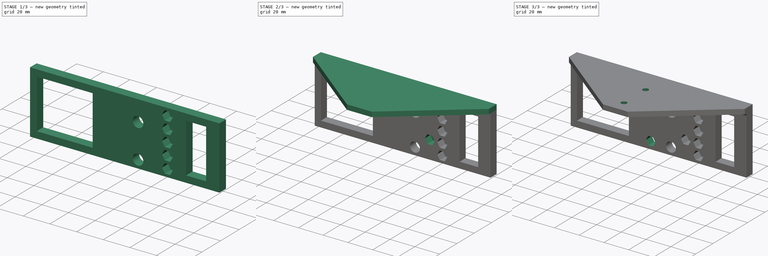
[diagram: build sequence overview — one tinted view per stage of 3, left to right]
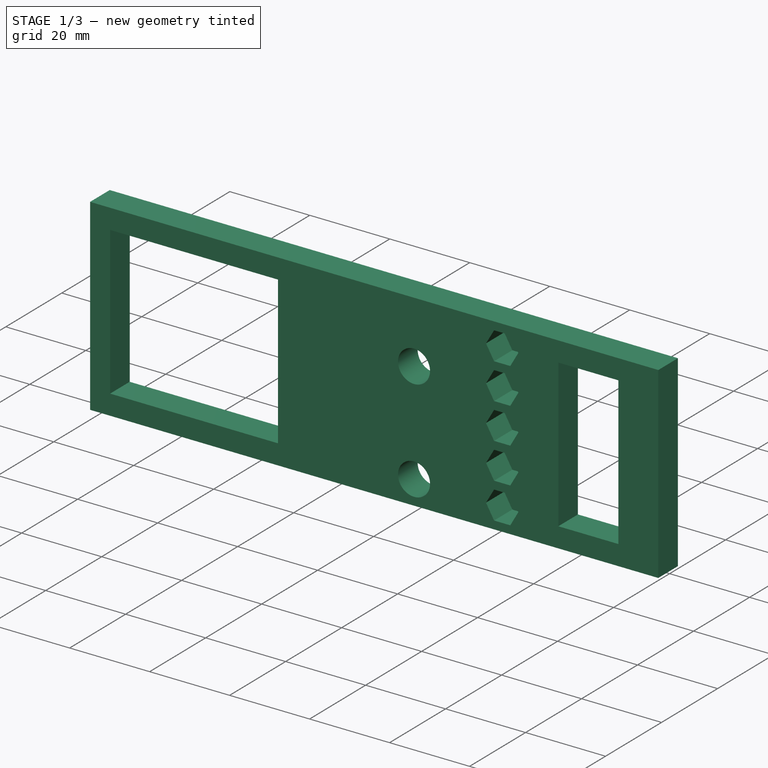
[diagram: stage 1 of 3 — iso view after this stage's code; geometry added in this stage tinted green]
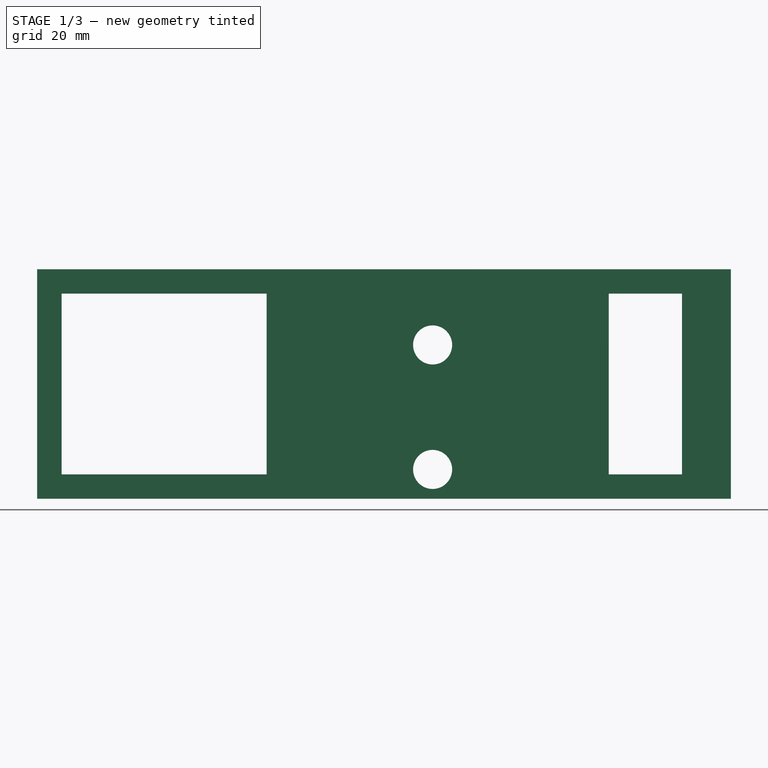
[diagram: stage 1 of 3 — front view after this stage's code; geometry added in this stage tinted green]
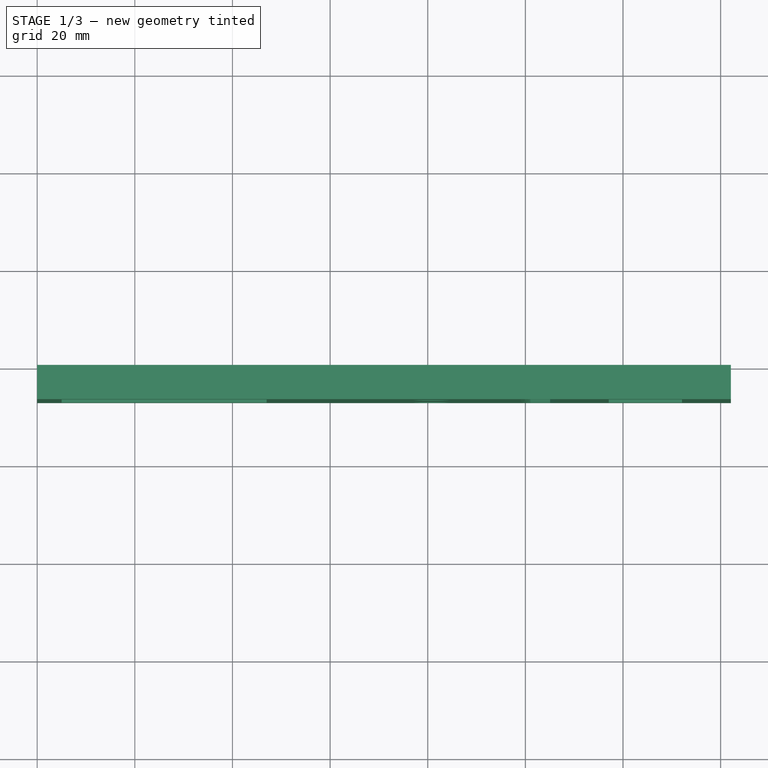
[diagram: stage 1 of 3 — top view after this stage's code; geometry added in this stage tinted green]
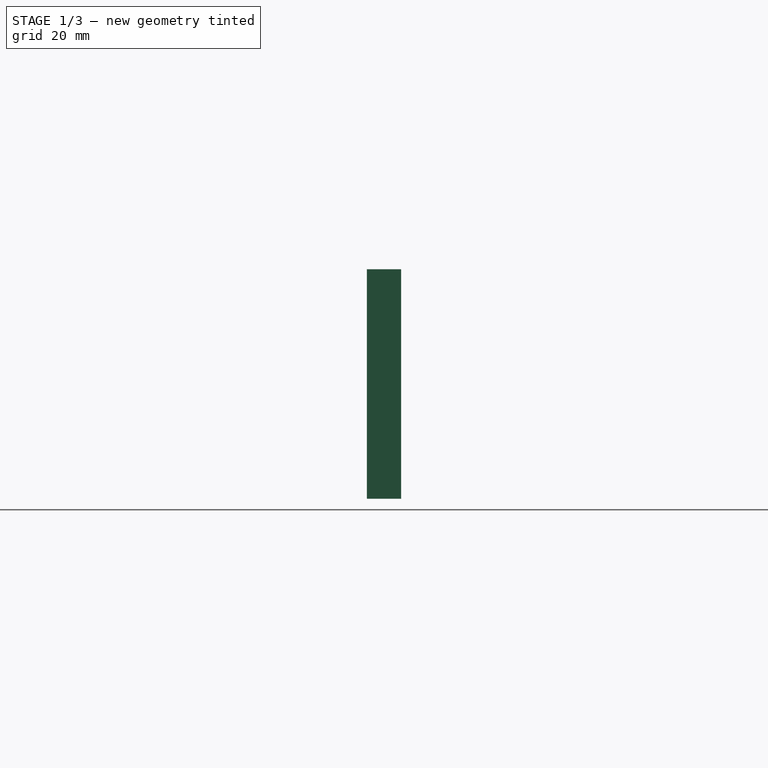
[diagram: stage 1 of 3 — right view after this stage's code; geometry added in this stage tinted green]
FCSTD DOCUMENT  (FreeCAD 0.18R4 (GitTag))
Label: soporte_mabrega
License: All rights reserved
LicenseURL: http://en.wikipedia.org/wiki/All_rights_reserved
objects: Sketcher::SketchObject×6, PartDesign::Pocket×3, PartDesign::Pad×2, PartDesign::LinearPattern×1, PartDesign::Chamfer×1, PartDesign::Hole×1, PartDesign::Body×1
note: 21 computed .brp shape members not serialized (recipe doc carries the construction recipe); baked Part::Feature solids carry a one-line shape summary decoded from their .brp

FEATURE [Sketcher::SketchObject] Sketch
  MapMode = 5
  Placement = pos=(0,0,0) rot=(1,0,0;1.5708rad)
  Support = -> [XZ_Plane]
  sketch-geometry (40):
    g0: LineSegment [constr] StartX=-16.5 StartY=23.5 StartZ=0 EndX=148.5 EndY=23.5 EndZ=0
    g1: LineSegment StartX=0 StartY=47 StartZ=0 EndX=142.083 EndY=47 EndZ=0
    g2: LineSegment StartX=142.083 StartY=47 StartZ=0 EndX=142.083 EndY=0 EndZ=0
    g3: LineSegment StartX=142.083 StartY=0 StartZ=0 EndX=0 EndY=0 EndZ=0
    g4: LineSegment StartX=0 StartY=0 StartZ=0 EndX=0 EndY=47 EndZ=0
    g5: LineSegment StartX=5 StartY=42 StartZ=0 EndX=47 EndY=42 EndZ=0
    g6: LineSegment StartX=47 StartY=42 StartZ=0 EndX=47 EndY=5 EndZ=0
    g7: LineSegment StartX=47 StartY=5 StartZ=0 EndX=5 EndY=5 EndZ=0
    g8: LineSegment StartX=5 StartY=5 StartZ=0 EndX=5 EndY=42 EndZ=0
    g9: Circle [constr] CenterX=81 CenterY=31.5 CenterZ=0 NormalX=0 NormalY=0 NormalZ=1 AngleXU=0 Radius=13
    g10: Circle [constr] CenterX=81 CenterY=6 CenterZ=0 NormalX=0 NormalY=0 NormalZ=1 AngleXU=0 Radius=9
    g11: LineSegment [constr] StartX=65 StartY=60 StartZ=0 EndX=65 EndY=-13 EndZ=0
    g12: LineSegment [constr] StartX=81 StartY=60 StartZ=0 EndX=81 EndY=-13 EndZ=0
    g13: Circle CenterX=81 CenterY=31.5 CenterZ=0 NormalX=0 NormalY=0 NormalZ=1 AngleXU=0 Radius=4
    g14: Circle CenterX=81 CenterY=6 CenterZ=0 NormalX=0 NormalY=0 NormalZ=1 AngleXU=0 Radius=4
    g15: LineSegment [constr] StartX=105.062 StartY=38 StartZ=0 EndX=107.083 EndY=41.5 EndZ=0
    g16: LineSegment [constr] StartX=107.083 StartY=41.5 StartZ=0 EndX=105.062 EndY=45 EndZ=0
    g17: LineSegment [constr] StartX=105.062 StartY=45 StartZ=0 EndX=101.021 EndY=45 EndZ=0
    g18: LineSegment [constr] StartX=101.021 StartY=45 StartZ=0 EndX=99 EndY=41.5 EndZ=0
    g19: LineSegment [constr] StartX=99 StartY=41.5 StartZ=0 EndX=101.021 EndY=38 EndZ=0
    g20: LineSegment [constr] StartX=101.021 StartY=38 StartZ=0 EndX=105.062 EndY=38 EndZ=0
    g21: Circle [constr] CenterX=103.041 CenterY=41.5 CenterZ=0 NormalX=0 NormalY=0 NormalZ=1 AngleXU=0 Radius=4.04145
    g22: LineSegment [constr] StartX=105.062 StartY=29 StartZ=0 EndX=107.083 EndY=32.5 EndZ=0
    g23: LineSegment [constr] StartX=107.083 StartY=32.5 StartZ=0 EndX=105.062 EndY=36 EndZ=0
    g24: LineSegment [constr] StartX=105.062 StartY=36 StartZ=0 EndX=101.021 EndY=36 EndZ=0
    g25: LineSegment [constr] StartX=101.021 StartY=36 StartZ=0 EndX=99 EndY=32.5 EndZ=0
    g26: LineSegment [constr] StartX=99 StartY=32.5 StartZ=0 EndX=101.021 EndY=29 EndZ=0
    g27: LineSegment [constr] StartX=101.021 StartY=29 StartZ=0 EndX=105.062 EndY=29 EndZ=0
    g28: Circle [constr] CenterX=103.041 CenterY=32.5 CenterZ=0 NormalX=0 NormalY=0 NormalZ=1 AngleXU=0 Radius=4.04145
    g29: LineSegment [constr] StartX=105.062 StartY=20 StartZ=0 EndX=107.083 EndY=23.5 EndZ=0
    g30: LineSegment [constr] StartX=107.083 StartY=23.5 StartZ=0 EndX=105.062 EndY=27 EndZ=0
    g31: LineSegment [constr] StartX=105.062 StartY=27 StartZ=0 EndX=101.021 EndY=27 EndZ=0
    g32: LineSegment [constr] StartX=101.021 StartY=27 StartZ=0 EndX=99 EndY=23.5 EndZ=0
    g33: LineSegment [constr] StartX=99 StartY=23.5 StartZ=0 EndX=101.021 EndY=20 EndZ=0
    g34: LineSegment [constr] StartX=101.021 StartY=20 StartZ=0 EndX=105.062 EndY=20 EndZ=0
    g35: Circle [constr] CenterX=103.041 CenterY=23.5 CenterZ=0 NormalX=0 NormalY=0 NormalZ=1 AngleXU=0 Radius=4.04145
    g36: LineSegment StartX=117.083 StartY=42 StartZ=0 EndX=132.083 EndY=42 EndZ=0
    g37: LineSegment StartX=132.083 StartY=42 StartZ=0 EndX=132.083 EndY=5 EndZ=0
    g38: LineSegment StartX=132.083 StartY=5 StartZ=0 EndX=117.083 EndY=5 EndZ=0
    g39: LineSegment StartX=117.083 StartY=5 StartZ=0 EndX=117.083 EndY=42 EndZ=0
  constraints (105):
    c: Horizontal(g0)
    c: DistanceY(g-1,g0) = 23.5
    c: DistanceX(g0,g-1) = 16.5
    c: Coincident(g1,g2)
    c: Coincident(g2,g3)
    c: Coincident(g3,g4)
    c: Coincident(g4,g1)
    c: Horizontal(g1)
    c: Horizontal(g3)
    c: Vertical(g2)
    c: PointOnObject(g1,g-2)
    c: Symmetric(g3,g1,g0)
    c: Coincident(g5,g6)
    c: Coincident(g6,g7)
    c: Coincident(g7,g8)
    c: Coincident(g8,g5)
    c: Horizontal(g5)
    c: Horizontal(g7)
    c: Vertical(g6)
    c: Symmetric(g5,g7,g0)
    c: DistanceY(g4,g4) = 47
    c: DistanceY(g8,g8) = 37
    c: DistanceX(g3,g7) = 5
    c: DistanceX(g7,g7) = 42
    c: Diameter(g9) = 26
    c: Diameter(g10) = 18
    c: Symmetric(g11,g11,g0)
    c: DistanceX(g5,g11) = 60
    c: DistanceX(g5,g9) = 76
    c: Vertical(g12)
    c: PointOnObject(g9,g12)
    c: PointOnObject(g10,g12)
    c: Equal(g11,g12)
    c: Horizontal(g12,g11)
    c: DistanceY(g11,g11) = 73
    c: Coincident(g13,g9)
    c: Coincident(g14,g10)
    c: DistanceY(g14,g13) = 25.5
    c: Diameter(g14) = 8
    c: Equal(g14,g13)
    c: Coincident(g15,g16)
    c: Coincident(g16,g17)
    c: Coincident(g17,g18)
    c: Coincident(g18,g19)
    c: Coincident(g19,g20)
    c: Coincident(g20,g15)
    c: Equal(g15, g16-g20) x5
    c: PointOnObject(g15,g21)
    c: PointOnObject(g16,g21)
    c: PointOnObject(g17,g21)
    c: PointOnObject(g18,g21)
    c: PointOnObject(g19,g21)
    c: PointOnObject(g20,g21)
    c: Horizontal(g20)
    c: Distance(g18,g15) = 7
    c: DistanceX(g13,g18) = 18
    c: Coincident(g22,g23)
    c: Coincident(g23,g24)
    c: Coincident(g24,g25)
    c: Coincident(g25,g26)
    c: Coincident(g26,g27)
    c: Coincident(g27,g22)
    c: Equal(g22, g23-g27) x5
    c: PointOnObject(g22,g28)
    c: PointOnObject(g23,g28)
    c: PointOnObject(g24,g28)
    c: PointOnObject(g25,g28)
    c: PointOnObject(g26,g28)
    c: PointOnObject(g27,g28)
    c: Horizontal(g27)
    c: Distance(g25,g22) = 7
    c: DistanceY(g17,g1) = 2
    c: DistanceY(g24,g19) = 2
    c: Coincident(g29,g30)
    c: Coincident(g30,g31)
    c: Coincident(g31,g32)
    c: Coincident(g32,g33)
    c: Coincident(g33,g34)
    c: Coincident(g34,g29)
    c: Equal(g29, g30-g34) x5
    c: PointOnObject(g29,g35)
    c: PointOnObject(g30,g35)
    c: PointOnObject(g31,g35)
    c: PointOnObject(g32,g35)
    c: PointOnObject(g33,g35)
    c: PointOnObject(g34,g35)
    c: Horizontal(g34)
    c: Distance(g32,g29) = 7
    c: DistanceY(g31,g26) = 2
    c: Vertical(g18,g25)
    c: Vertical(g25,g32)
    c: Coincident(g36,g37)
    c: Coincident(g37,g38)
    c: Coincident(g38,g39)
    c: Coincident(g39,g36)
    c: Horizontal(g36)
    c: Horizontal(g38)
    c: Vertical(g37)
    c: DistanceX(g15,g36) = 10
    c: Symmetric(g38,g36,g0)
    c: DistanceY(g39,g39) = 37
    c: DistanceX(g38,g38) = 15
    c: DistanceX(g37,g2) = 10
    c: DistanceX(g0,g0) = 165
    c: DistanceY(g2,g14) = 6
FEATURE [PartDesign::Pad] Pad
  Length = 7
  Length2 = 100
  Placement = pos=(0,0,0) rot=(1,0,0;1.5708rad)
  Profile = -> Sketch
  Type = 0
FEATURE [Sketcher::SketchObject] Sketch001
  ExternalGeometry = -> [Pad]
  MapMode = 5
  Placement = pos=(0,-7,0) rot=(1,0,0;1.5708rad)
  Support = -> [Pad]
  sketch-geometry (8):
    g0: LineSegment [constr] StartX=103.041 StartY=47 StartZ=0 EndX=103.041 EndY=0 EndZ=0
    g1: LineSegment StartX=105.062 StartY=45 StartZ=0 EndX=101.021 EndY=45 EndZ=0
    g2: LineSegment StartX=101.021 StartY=45 StartZ=0 EndX=99 EndY=41.5 EndZ=0
    g3: LineSegment StartX=99 StartY=41.5 StartZ=0 EndX=101.021 EndY=38 EndZ=0
    g4: LineSegment StartX=101.021 StartY=38 StartZ=0 EndX=105.062 EndY=38 EndZ=0
    g5: LineSegment StartX=105.062 StartY=38 StartZ=0 EndX=107.083 EndY=41.5 EndZ=0
    g6: LineSegment StartX=107.083 StartY=41.5 StartZ=0 EndX=105.062 EndY=45 EndZ=0
    g7: Circle [constr] CenterX=103.041 CenterY=41.5 CenterZ=0 NormalX=0 NormalY=0 NormalZ=1 AngleXU=0 Radius=4.04145
  constraints (21):
    c: Vertical(g0)
    c: PointOnObject(g0,g-3)
    c: PointOnObject(g0,g-1)
    c: Coincident(g1,g2)
    c: Coincident(g2,g3)
    c: Coincident(g3,g4)
    c: Coincident(g4,g5)
    c: Coincident(g5,g6)
    c: Coincident(g6,g1)
    c: Equal(g1, g2-g6) x5
    c: PointOnObject(g1,g7)
    c: PointOnObject(g2,g7)
    c: PointOnObject(g3,g7)
    c: PointOnObject(g4,g7)
    c: PointOnObject(g5,g7)
    c: PointOnObject(g6,g7)
    c: PointOnObject(g7,g0)
    c: Horizontal(g1)
    c: Distance(g2,g4) = 7
    c: DistanceX(g5,g-3) = 35
    c: DistanceY(g1,g-3) = 2
FEATURE [PartDesign::Pocket] Pocket
  BaseFeature = -> Pad
  Length = 6.5
  Length2 = 100
  Placement = pos=(0,0,0) rot=(1,0,0;1.5708rad)
  Profile = -> Sketch001
  Type = 0
FEATURE [PartDesign::LinearPattern] LinearPattern
  BaseFeature = -> Pocket
  Direction = -> Z_Axis
  Length = 36
  Occurrences = 5
  Originals = -> [Pocket]
  Placement = pos=(0,0,0) rot=(1,0,0;1.5708rad)
  Reversed = true
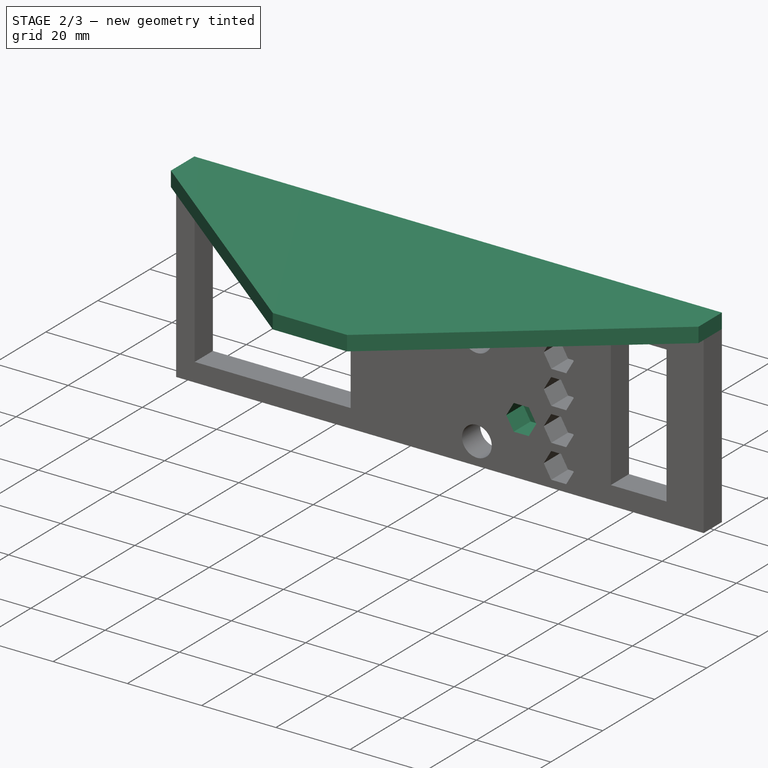
[diagram: stage 2 of 3 — iso view after this stage's code; geometry added in this stage tinted green]
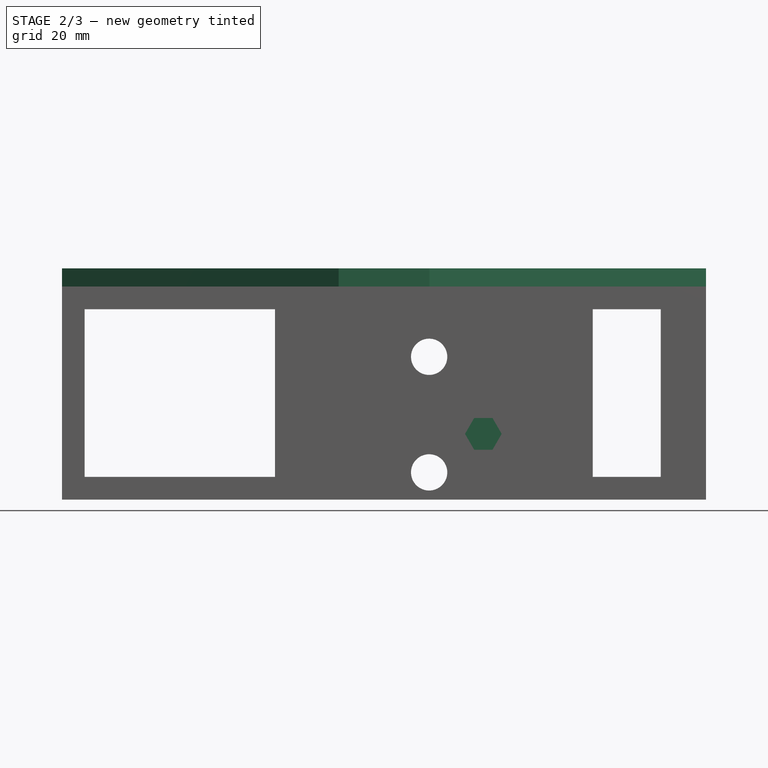
[diagram: stage 2 of 3 — front view after this stage's code; geometry added in this stage tinted green]
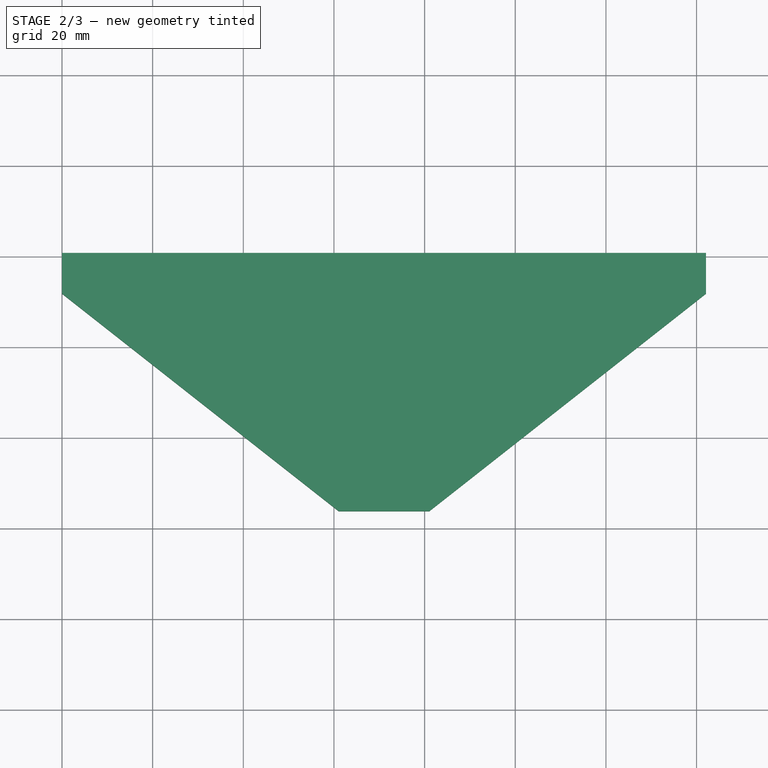
[diagram: stage 2 of 3 — top view after this stage's code; geometry added in this stage tinted green]
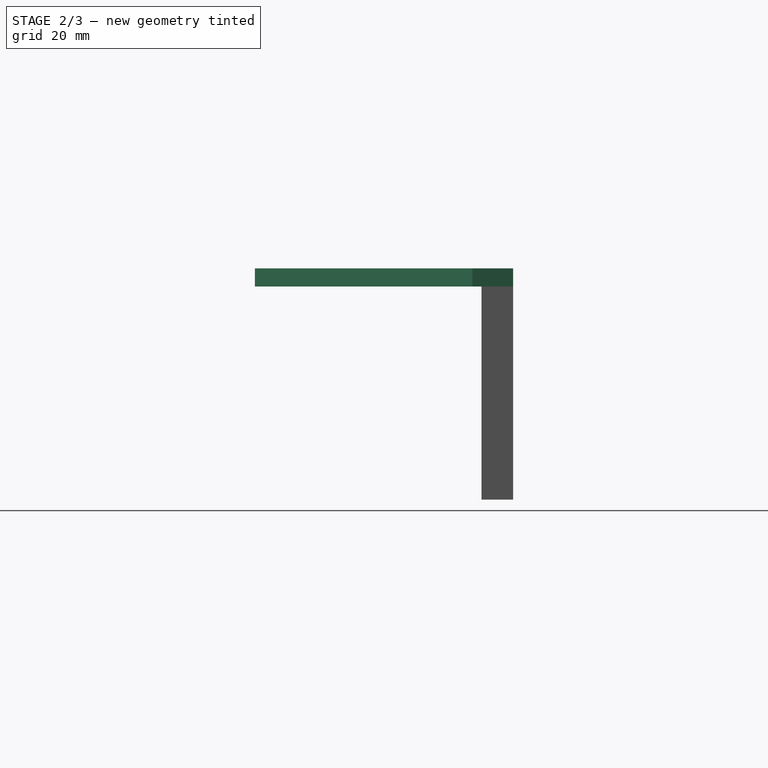
[diagram: stage 2 of 3 — right view after this stage's code; geometry added in this stage tinted green]
FEATURE [Sketcher::SketchObject] Sketch002
  ExternalGeometry = -> [LinearPattern]
  MapMode = 5
  Placement = pos=(0,-7,0) rot=(1,0,0;1.5708rad)
  Support = -> [LinearPattern]
  sketch-geometry (9):
    g0: LineSegment StartX=94.9793 StartY=11 StartZ=0 EndX=97 EndY=14.5 EndZ=0
    g1: LineSegment StartX=97 StartY=14.5 StartZ=0 EndX=94.9793 EndY=18 EndZ=0
    g2: LineSegment StartX=94.9793 StartY=18 StartZ=0 EndX=90.9378 EndY=18 EndZ=0
    g3: LineSegment StartX=90.9378 StartY=18 StartZ=0 EndX=88.9171 EndY=14.5 EndZ=0
    g4: LineSegment StartX=88.9171 StartY=14.5 StartZ=0 EndX=90.9378 EndY=11 EndZ=0
    g5: LineSegment StartX=90.9378 StartY=11 StartZ=0 EndX=94.9793 EndY=11 EndZ=0
    g6: Circle [constr] CenterX=92.9585 CenterY=14.5 CenterZ=0 NormalX=0 NormalY=0 NormalZ=1 AngleXU=0 Radius=4.04145
    g7: Circle [constr] CenterX=81 CenterY=31.5 CenterZ=0 NormalX=0 NormalY=0 NormalZ=1 AngleXU=0 Radius=13
    g8: Circle [constr] CenterX=81 CenterY=6 CenterZ=0 NormalX=0 NormalY=0 NormalZ=1 AngleXU=0 Radius=9
  constraints (19):
    c: Coincident(g0,g1)
    c: Coincident(g1,g2)
    c: Coincident(g2,g3)
    c: Coincident(g3,g4)
    c: Coincident(g4,g5)
    c: Coincident(g5,g0)
    c: Equal(g0, g1-g5) x5
    c: PointOnObject(g0,g6)
    c: PointOnObject(g1,g6)
    c: PointOnObject(g2,g6)
    c: PointOnObject(g3,g6)
    c: PointOnObject(g4,g6)
    c: PointOnObject(g5,g6)
    c: Horizontal(g2)
    c: Distance(g3,g0) = 7
    c: Diameter(g7) = 26
    c: Diameter(g8) = 18
    c: Horizontal(g1,g-5)
    c: DistanceX(g0,g-9) = 2
FEATURE [PartDesign::Pocket] Pocket001
  BaseFeature = -> LinearPattern
  Length = 6.5
  Length2 = 100
  Placement = pos=(0,0,0) rot=(1,0,0;1.5708rad)
  Profile = -> Sketch002
  Type = 0
FEATURE [Sketcher::SketchObject] Sketch003
  ExternalGeometry = -> [Pocket001]
  MapMode = 5
  Placement = pos=(0,1.04e-14,47) rot=(0,0,1;3.14159rad)
  Support = -> [Pocket001]
  sketch-geometry (7):
    g0: LineSegment StartX=-142.083 StartY=9 StartZ=0 EndX=-81.0415 EndY=57 EndZ=0
    g1: LineSegment StartX=-81.0415 StartY=57 StartZ=0 EndX=-61.0415 EndY=57 EndZ=0
    g2: LineSegment StartX=-61.0415 StartY=57 StartZ=0 EndX=0 EndY=9 EndZ=0
    g3: LineSegment [constr] StartX=-71.0415 StartY=57 StartZ=0 EndX=-71.0415 EndY=0 EndZ=0
    g4: LineSegment StartX=-142.083 StartY=9 StartZ=0 EndX=-142.083 EndY=0 EndZ=0
    g5: LineSegment StartX=-142.083 StartY=0 StartZ=0 EndX=0 EndY=0 EndZ=0
    g6: LineSegment StartX=0 StartY=0 StartZ=0 EndX=0 EndY=9 EndZ=0
  constraints (19):
    c: Coincident(g0,g1)
    c: Coincident(g1,g2)
    c: Symmetric(g0,g2,g3)
    c: PointOnObject(g3,g1)
    c: PointOnObject(g3,g-1)
    c: Symmetric(g0,g1,g3)
    c: DistanceX(g1,g1) = 20
    c: Vertical(g4)
    c: Coincident(g4,g5)
    c: Horizontal(g5)
    c: Coincident(g5,g6)
    c: Coincident(g5,g-1)
    c: Coincident(g0,g4)
    c: Coincident(g6,g2)
    c: PointOnObject(g2,g-2)
    c: Horizontal(g2,g0)
    c: Vertical(g0,g-3)
    c: DistanceY(g-3,g1) = 50
    c: DistanceY(g-3,g2) = 2
FEATURE [PartDesign::Pad] Pad001
  BaseFeature = -> Pocket001
  Length = 4
  Length2 = 100
  Placement = pos=(0,0,0) rot=(1,0,0;1.5708rad)
  Profile = -> Sketch003
  Type = 0
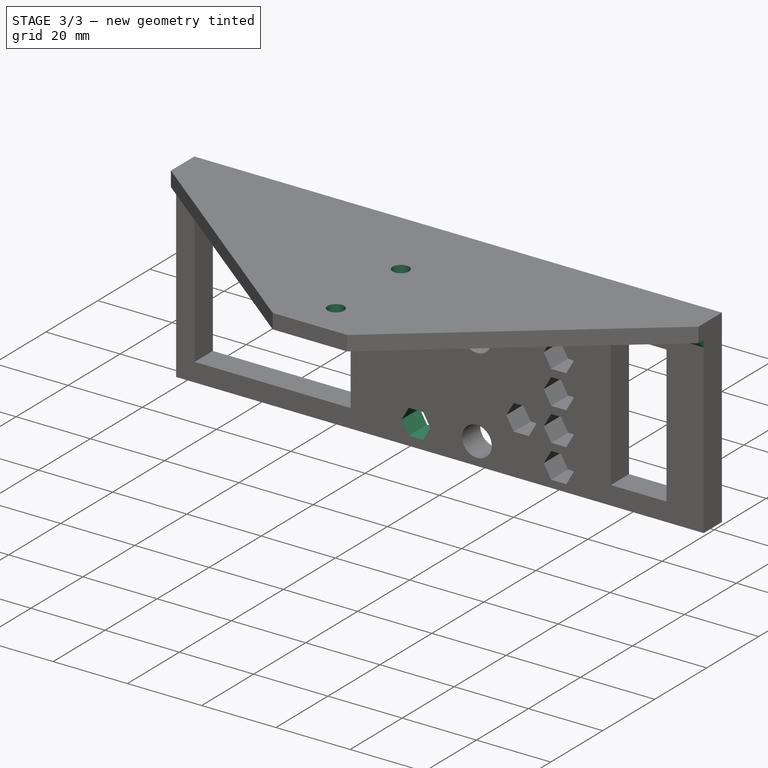
[diagram: stage 3 of 3 — iso view after this stage's code; geometry added in this stage tinted green]
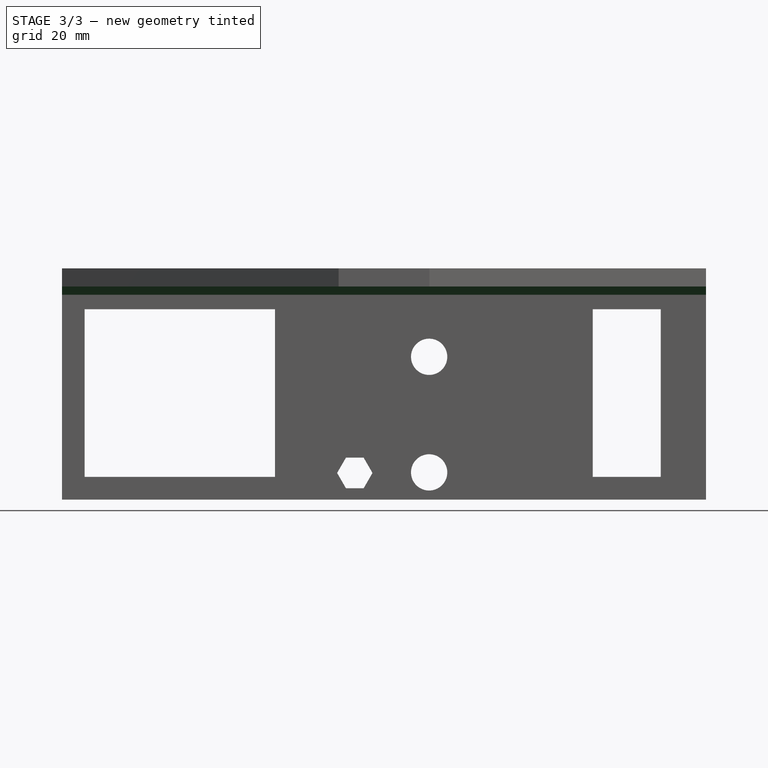
[diagram: stage 3 of 3 — front view after this stage's code; geometry added in this stage tinted green]
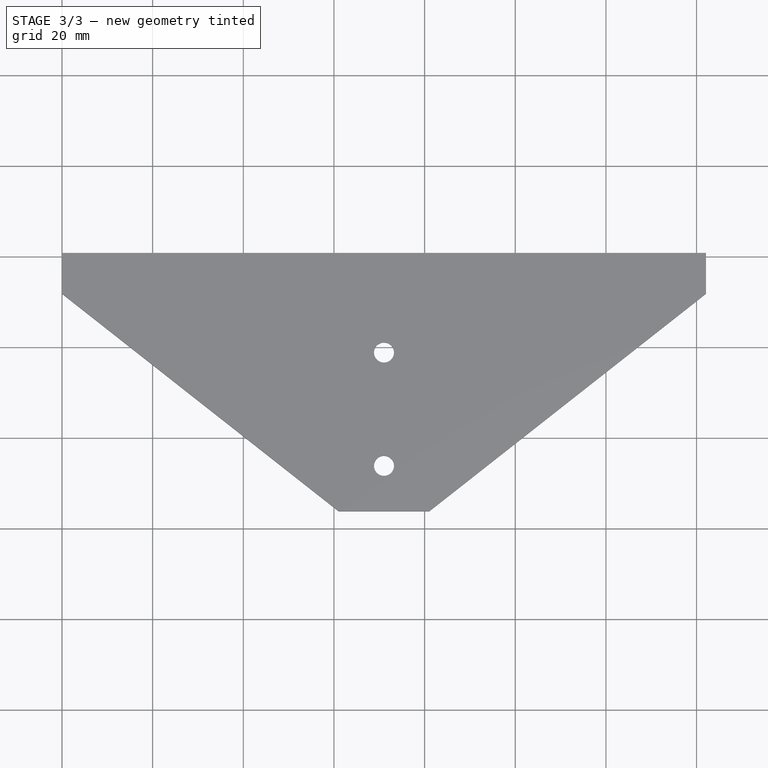
[diagram: stage 3 of 3 — top view after this stage's code; geometry added in this stage tinted green]
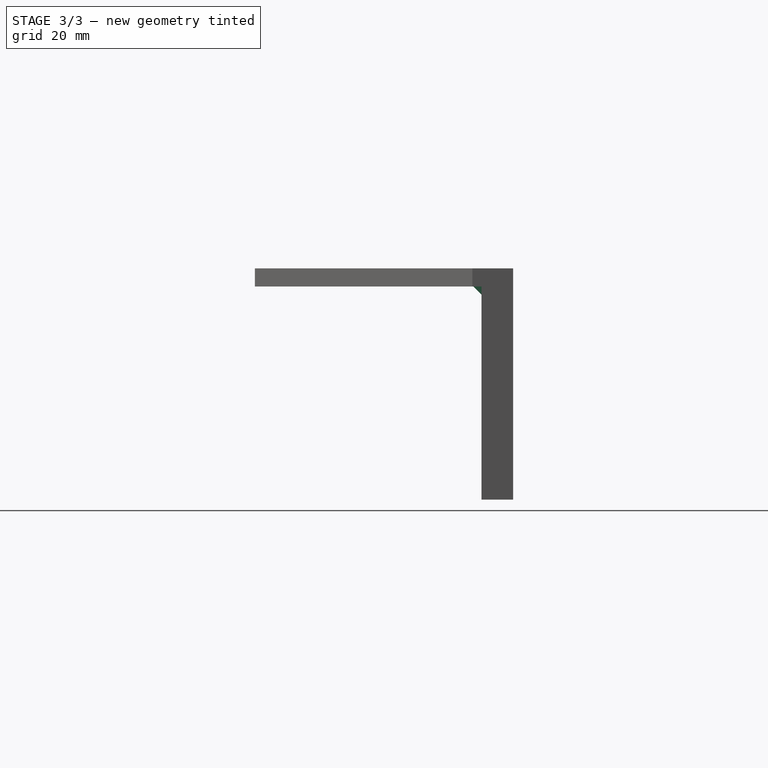
[diagram: stage 3 of 3 — right view after this stage's code; geometry added in this stage tinted green]
FEATURE [PartDesign::Chamfer] Chamfer
  Base = -> Pad001 [Edge24]
  BaseFeature = -> Pad001
  Placement = pos=(0,0,0) rot=(1,0,0;1.5708rad)
  Size = 1.8
FEATURE [Sketcher::SketchObject] Sketch004
  ExternalGeometry = -> [Chamfer]
  MapMode = 5
  Placement = pos=(0,-1.8e-15,47) rot=(1,0,0;3.14159rad)
  Support = -> [Chamfer]
  sketch-geometry (3):
    g0: LineSegment [constr] StartX=71.0415 StartY=57 StartZ=0 EndX=71.0415 EndY=0 EndZ=0
    g1: Circle CenterX=71.0415 CenterY=47 CenterZ=0 NormalX=0 NormalY=0 NormalZ=1 AngleXU=0 Radius=2.2
    g2: Circle CenterX=71.0415 CenterY=22 CenterZ=0 NormalX=0 NormalY=0 NormalZ=1 AngleXU=0 Radius=2.2
  constraints (9):
    c: PointOnObject(g0,g-4)
    c: PointOnObject(g0,g-3)
    c: Symmetric(g-3,g-3,g0)
    c: PointOnObject(g1,g0)
    c: PointOnObject(g2,g0)
    c: Diameter(g1) = 4.4
    c: Equal(g1,g2)
    c: DistanceY(g1,g-3) = 10
    c: DistanceY(g2,g1) = 25
FEATURE [PartDesign::Hole] Hole
  BaseFeature = -> Chamfer
  Depth = 25
  DepthType = 0
  Diameter = 4.4
  DrillPoint = 1
  DrillPointAngle = 118
  HoleCutCountersinkAngle = 90
  HoleCutDepth = 0
  HoleCutDiameter = 8
  HoleCutType = 2
  ModelActualThread = false
  Placement = pos=(0,0,0) rot=(1,0,0;1.5708rad)
  Profile = -> Sketch004
  Tapered = false
  TaperedAngle = 90
  ThreadAngle = 0
  ThreadClass = 0
  ThreadCutOffInner = 0
  ThreadCutOffOuter = 0
  ThreadDirection = 0
  ThreadFit = 0
  ThreadPitch = 0
  ThreadSize = 5
  ThreadType = 1
  Threaded = false
FEATURE [Sketcher::SketchObject] Sketch005
  ExternalGeometry = -> [Hole]
  MapMode = 5
  Placement = pos=(0,-7,0) rot=(1,0,0;1.5708rad)
  Support = -> [Hole]
  sketch-geometry (8):
    g0: LineSegment StartX=66.55 StartY=2.5 StartZ=0 EndX=68.5 EndY=5.8775 EndZ=0
    g1: LineSegment StartX=68.5 StartY=5.8775 StartZ=0 EndX=66.55 EndY=9.255 EndZ=0
    g2: LineSegment StartX=66.55 StartY=9.255 StartZ=0 EndX=62.65 EndY=9.255 EndZ=0
    g3: LineSegment StartX=62.65 StartY=9.255 StartZ=0 EndX=60.7 EndY=5.8775 EndZ=0
    g4: LineSegment StartX=60.7 StartY=5.8775 StartZ=0 EndX=62.65 EndY=2.5 EndZ=0
    g5: LineSegment StartX=62.65 StartY=2.5 StartZ=0 EndX=66.55 EndY=2.5 EndZ=0
    g6: Circle [constr] CenterX=64.6 CenterY=5.8775 CenterZ=0 NormalX=0 NormalY=0 NormalZ=1 AngleXU=0 Radius=3.9
    g7: Circle [constr] CenterX=81 CenterY=6 CenterZ=0 NormalX=0 NormalY=0 NormalZ=1 AngleXU=0 Radius=9
  constraints (19):
    c: Coincident(g0,g1)
    c: Coincident(g1,g2)
    c: Coincident(g2,g3)
    c: Coincident(g3,g4)
    c: Coincident(g4,g5)
    c: Coincident(g5,g0)
    c: Equal(g0, g1-g5) x5
    c: PointOnObject(g0,g6)
    c: PointOnObject(g1,g6)
    c: PointOnObject(g2,g6)
    c: PointOnObject(g3,g6)
    c: PointOnObject(g4,g6)
    c: PointOnObject(g5,g6)
    c: Horizontal(g5)
    c: Diameter(g6) = 7.8
    c: Coincident(g7,g-3)
    c: Diameter(g7) = 18
    c: DistanceX(g0,g7) = 12.5
    c: DistanceY(g-1,g4) = 2.5
FEATURE [PartDesign::Pocket] Pocket002
  BaseFeature = -> Hole
  Length = 5
  Length2 = 100
  Placement = pos=(0,0,0) rot=(1,0,0;1.5708rad)
  Profile = -> Sketch005
  Type = 1
FEATURE [PartDesign::Body] Body
  Group = -> [Sketch,Pad,Sketch001,Pocket,LinearPattern,Sketch002,Pocket001,Sketch003,Pad001,Chamfer,Sketch004,Hole,Sketch005,Pocket002]
  Origin = -> Origin
  Tip = -> Pocket002
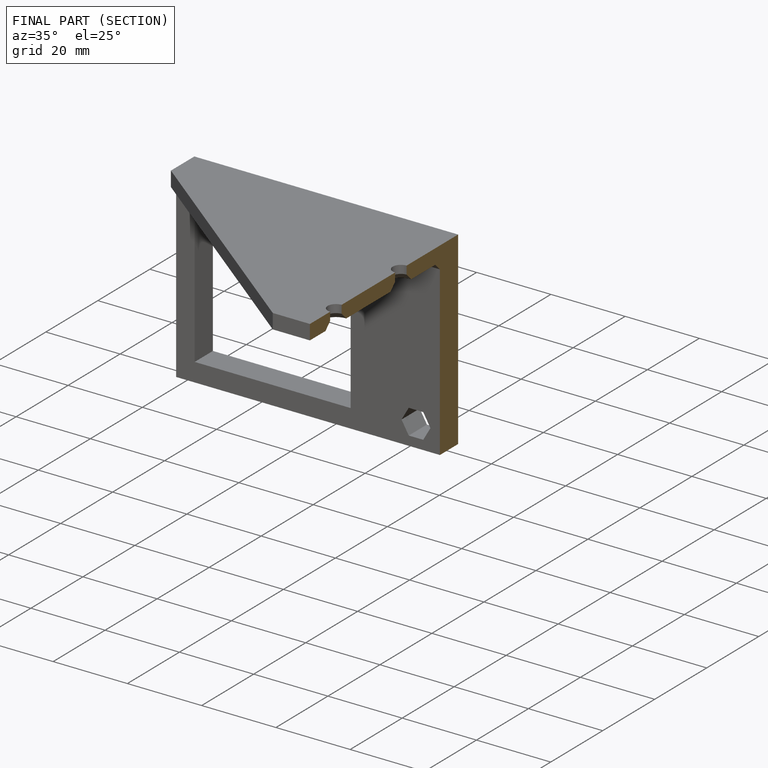
[diagram: finished part — half-section view (interior)]
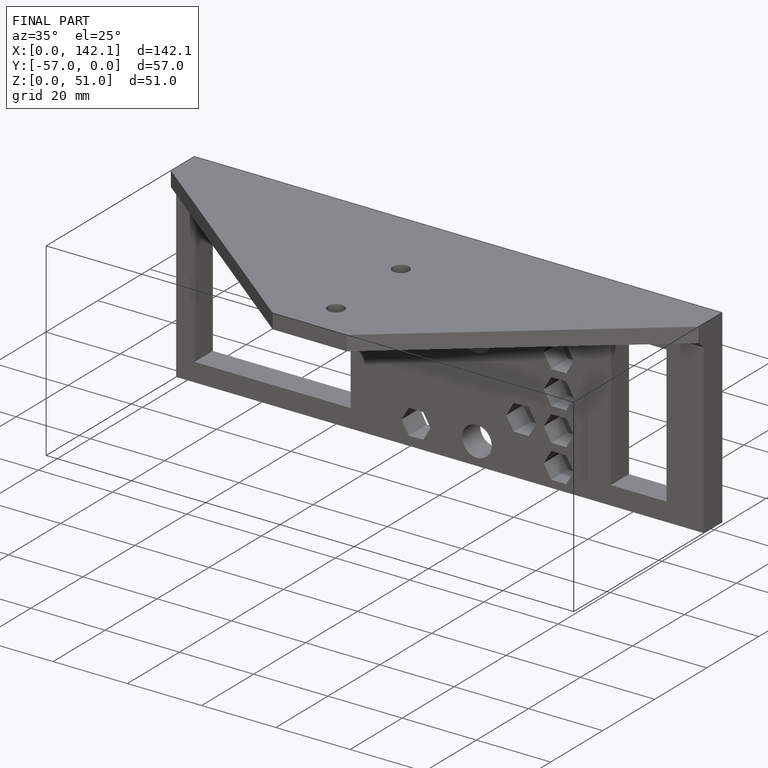
[diagram: finished part — iso view with bounding-box wireframe]
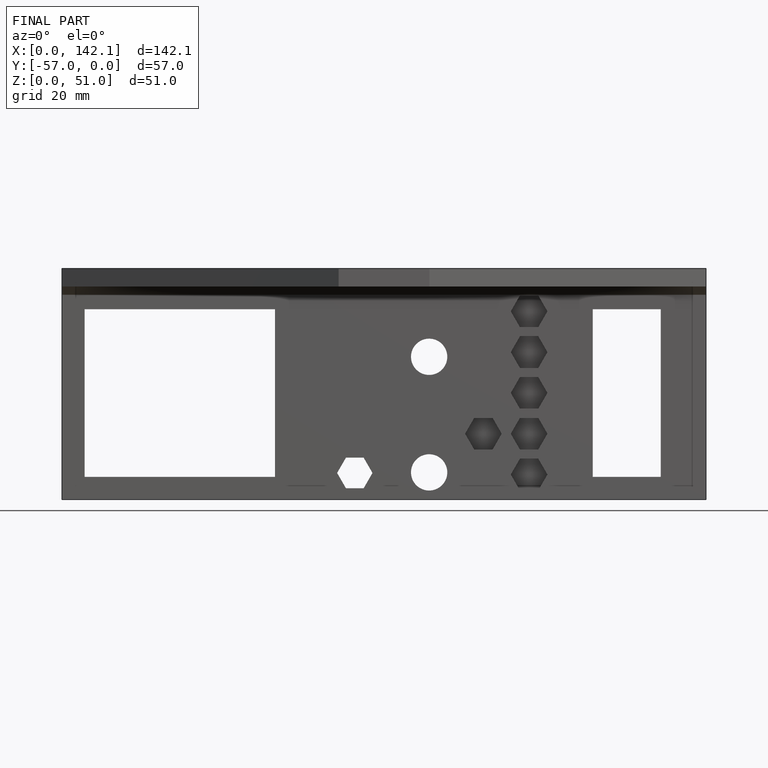
[diagram: finished part — front view with bounding-box wireframe]
